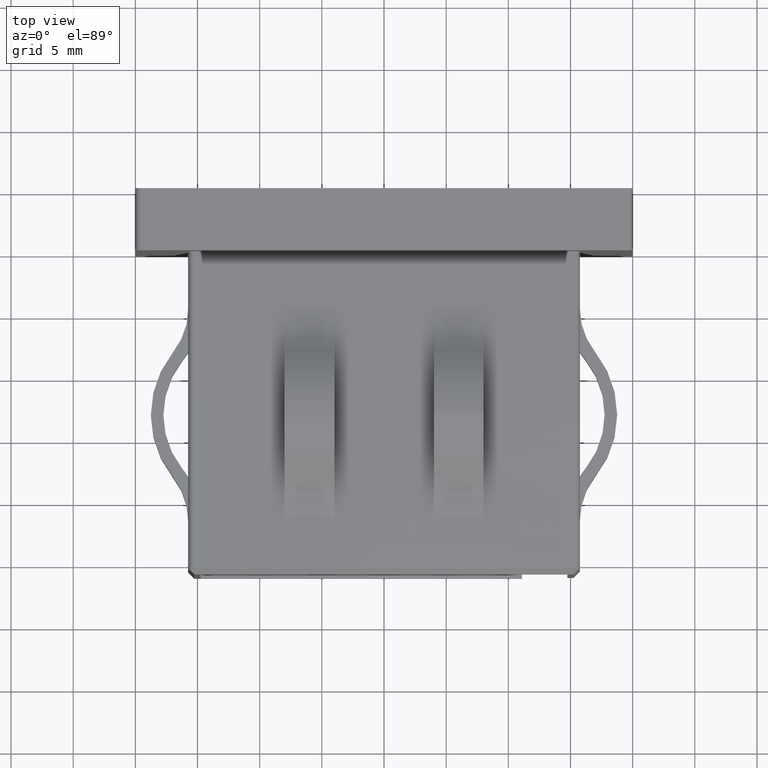
[diagram: clean part render]
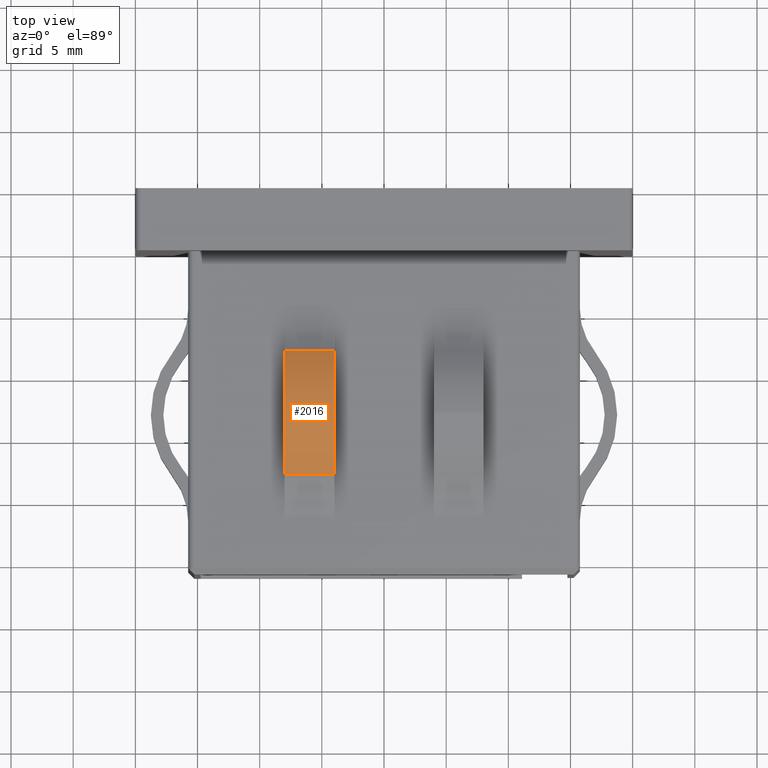
[diagram: same view with one face highlighted and labeled with its STEP entity id]
A machine part, top view. The second image highlights one B-rep face of the part: STEP entity #2016.
In plain terms, the highlighted cylindrical surface (partial cylindrical patch) has radius 7.9657 mm, axis along (1, -0, -0).
Its self-contained STEP definition (entity closure, byte-faithful):
#940 = DIRECTION ( 'NONE',  ( -2.177745207811451911E-16, 0.000000000000000000, -1.000000000000000000 ) ) ;
#1147 = VERTEX_POINT ( 'NONE', #13738 ) ;
#1386 = VERTEX_POINT ( 'NONE', #13069 ) ;
#1745 = ORIENTED_EDGE ( 'NONE', *, *, #9845, .T. ) ;
#2016 = ADVANCED_FACE ( 'NONE', ( #13135 ), #13878, .T. ) ;
#2791 = CARTESIAN_POINT ( 'NONE',  ( -3.999999999999997335, -17.99999977876895940, 11.98529407171674954 ) ) ;
#2812 = DIRECTION ( 'NONE',  ( -2.177745207811451911E-16, -8.710980831245807645E-16, -1.000000000000000000 ) ) ;
#4424 = ORIENTED_EDGE ( 'NONE', *, *, #12861, .F. ) ;
#4775 = ORIENTED_EDGE ( 'NONE', *, *, #5032, .T. ) ;
#4948 = EDGE_LOOP ( 'NONE', ( #4775, #4424, #12339, #1745 ) ) ;
#5032 = EDGE_CURVE ( 'NONE', #14033, #1147, #9078, .T. ) ;
#6060 = DIRECTION ( 'NONE',  ( 1.000000000000000000, -0.000000000000000000, -1.927470528863118802E-16 ) ) ;
#6634 = AXIS2_PLACEMENT_3D ( 'NONE', #14803, #7842, #940 ) ;
#6739 = AXIS2_PLACEMENT_3D ( 'NONE', #13204, #14568, #2812 ) ;
#6926 = CARTESIAN_POINT ( 'NONE',  ( -7.999999999999996447, -7.999999778768970060, 11.98529407171674599 ) ) ;
#7842 = DIRECTION ( 'NONE',  ( -1.000000000000000000, -1.232595164407830946E-32, 1.996534494339893374E-16 ) ) ;
#8167 = DIRECTION ( 'NONE',  ( -2.177745207811451911E-16, 0.000000000000000000, -1.000000000000000000 ) ) ;
#8238 = AXIS2_PLACEMENT_3D ( 'NONE', #11594, #9288, #8167 ) ;
#9078 = CIRCLE ( 'NONE', #6634, 7.965686113115757472 ) ;
#9288 = DIRECTION ( 'NONE',  ( 1.000000000000000000, -0.000000000000000000, -1.927470528863118802E-16 ) ) ;
#9374 = VERTEX_POINT ( 'NONE', #6926 ) ;
#9505 = CARTESIAN_POINT ( 'NONE',  ( -7.999999999999996447, -7.999999778768970060, 11.98529407171674599 ) ) ;
#9845 = EDGE_CURVE ( 'NONE', #1386, #14033, #14959, .T. ) ;
#9917 = CIRCLE ( 'NONE', #6739, 7.965686113115757472 ) ;
#10565 = CARTESIAN_POINT ( 'NONE',  ( -7.999999999999996447, -17.99999977876895940, 11.98529407171674954 ) ) ;
#10841 = LINE ( 'NONE', #9505, #13754 ) ;
#11594 = CARTESIAN_POINT ( 'NONE',  ( -7.999999999999998224, -12.99999977876895940, 5.784313886884255851 ) ) ;
#11861 = VECTOR ( 'NONE', #12870, 1000.000000000000000 ) ;
#12339 = ORIENTED_EDGE ( 'NONE', *, *, #13482, .F. ) ;
#12861 = EDGE_CURVE ( 'NONE', #9374, #1147, #10841, .T. ) ;
#12870 = DIRECTION ( 'NONE',  ( 1.000000000000000000, -0.000000000000000000, -1.927470528863118802E-16 ) ) ;
#13069 = CARTESIAN_POINT ( 'NONE',  ( -7.999999999999996447, -17.99999977876895940, 11.98529407171674954 ) ) ;
#13135 = FACE_OUTER_BOUND ( 'NONE', #4948, .T. ) ;
#13204 = CARTESIAN_POINT ( 'NONE',  ( -7.999999999999998224, -12.99999977876895940, 5.784313886884255851 ) ) ;
#13482 = EDGE_CURVE ( 'NONE', #1386, #9374, #9917, .T. ) ;
#13738 = CARTESIAN_POINT ( 'NONE',  ( -3.999999999999997335, -7.999999778768970060, 11.98529407171674599 ) ) ;
#13754 = VECTOR ( 'NONE', #6060, 1000.000000000000000 ) ;
#13878 = CYLINDRICAL_SURFACE ( 'NONE', #8238, 7.965686113115757472 ) ;
#14033 = VERTEX_POINT ( 'NONE', #2791 ) ;
#14568 = DIRECTION ( 'NONE',  ( -1.000000000000000000, -1.232595164407830946E-32, 1.996534494339893374E-16 ) ) ;
#14803 = CARTESIAN_POINT ( 'NONE',  ( -3.999999999999998224, -12.99999977876895940, 5.784313886884254963 ) ) ;
#14959 = LINE ( 'NONE', #10565, #11861 ) ;